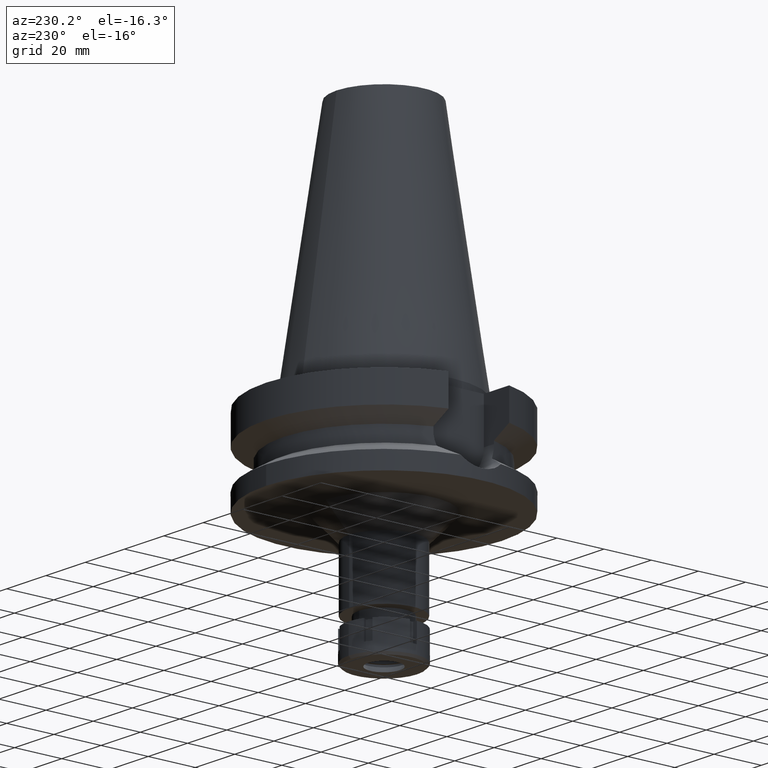
[diagram: clean part render]
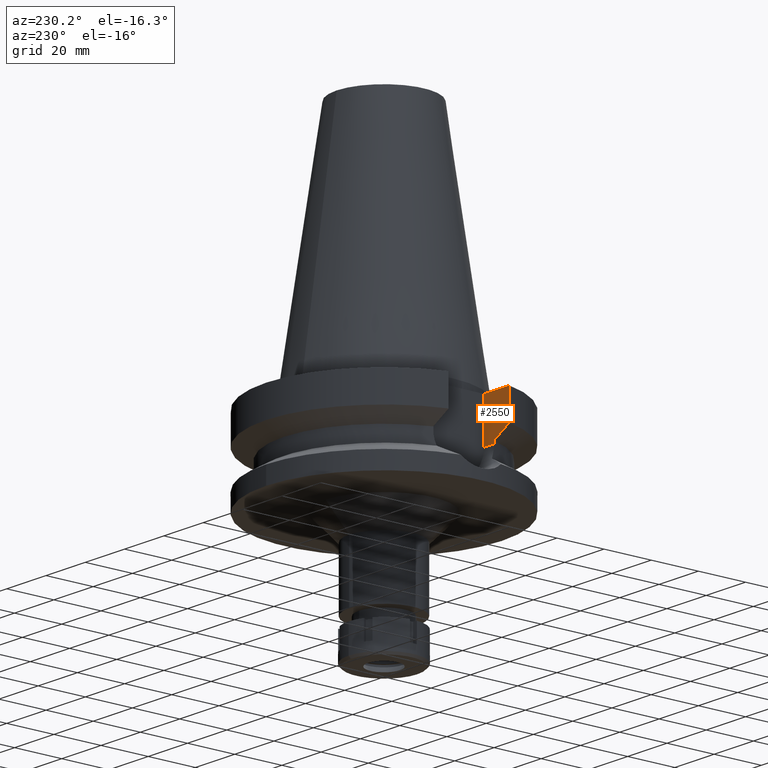
[diagram: same view with one face highlighted and labeled with its STEP entity id]
A machine part, auxiliary view. The second image highlights one B-rep face of the part: STEP entity #2550.
In plain terms, the highlighted planar face has unit normal (0, -1, 0).
Its self-contained STEP definition (entity closure, byte-faithful):
#43 = VECTOR ( 'NONE', #2361, 1000.000000000000000 ) ;
#522 = CARTESIAN_POINT ( 'NONE',  ( -40.51083299956000161, -12.84999648566000019, -19.99284622474999651 ) ) ;
#543 = PLANE ( 'NONE',  #3007 ) ;
#556 = CARTESIAN_POINT ( 'NONE',  ( -35.39999999999999858, -12.84999999999999964, -3.000000000000000000 ) ) ;
#630 = LINE ( 'NONE', #3270, #43 ) ;
#655 = CARTESIAN_POINT ( 'NONE',  ( -48.32057015392000210, -12.84999999999999964, -3.000000000000000000 ) ) ;
#739 = EDGE_CURVE ( 'NONE', #3208, #781, #973, .T. ) ;
#763 = ORIENTED_EDGE ( 'NONE', *, *, #739, .F. ) ;
#781 = VERTEX_POINT ( 'NONE', #2551 ) ;
#838 = ORIENTED_EDGE ( 'NONE', *, *, #1358, .F. ) ;
#973 = B_SPLINE_CURVE_WITH_KNOTS ( 'NONE', 3,
 ( #3040, #1061, #1636, #522 ),
 .UNSPECIFIED., .F., .F.,
 ( 4, 4 ),
 ( 0.0000000000000000000, 1.000000000000000000 ),
 .UNSPECIFIED. ) ;
#1020 = ORIENTED_EDGE ( 'NONE', *, *, #3201, .T. ) ;
#1061 = CARTESIAN_POINT ( 'NONE',  ( -45.51179789322389269, -12.85000766995661081, -17.22986769098791626 ) ) ;
#1070 = EDGE_CURVE ( 'NONE', #1703, #2386, #3210, .T. ) ;
#1164 = ORIENTED_EDGE ( 'NONE', *, *, #1070, .T. ) ;
#1171 = DIRECTION ( 'NONE',  ( -1.000000000000000000, 0.0000000000000000000, 0.0000000000000000000 ) ) ;
#1259 = EDGE_LOOP ( 'NONE', ( #763, #2811, #838, #1020, #1164, #2357 ) ) ;
#1267 = DIRECTION ( 'NONE',  ( -9.633491446336229157E-07, 3.037051236993074806E-06, 0.9999999999949240603 ) ) ;
#1358 = EDGE_CURVE ( 'NONE', #2245, #2416, #3105, .T. ) ;
#1488 = CARTESIAN_POINT ( 'NONE',  ( -40.51083188481999997, -12.84999999999999964, -21.14999999999999858 ) ) ;
#1500 = DIRECTION ( 'NONE',  ( -8.058817555715599136E-08, 3.030400043934850333E-07, 0.9999999999999509281 ) ) ;
#1506 = DIRECTION ( 'NONE',  ( -1.000000000000000000, 3.440913946376999995E-14, 0.0000000000000000000 ) ) ;
#1635 = EDGE_CURVE ( 'NONE', #3208, #2416, #2923, .T. ) ;
#1636 = CARTESIAN_POINT ( 'NONE',  ( -42.90862372501882049, -12.84999296417323222, -18.67324847598090187 ) ) ;
#1644 = DIRECTION ( 'NONE',  ( 0.0000000000000000000, -1.000000000000000000, 0.0000000000000000000 ) ) ;
#1674 = CARTESIAN_POINT ( 'NONE',  ( -35.39999999999999858, -12.84999999999999964, -21.14999999999999858 ) ) ;
#1703 = VERTEX_POINT ( 'NONE', #1923 ) ;
#1845 = LINE ( 'NONE', #2692, #2470 ) ;
#1916 = FACE_OUTER_BOUND ( 'NONE', #1259, .T. ) ;
#1923 = CARTESIAN_POINT ( 'NONE',  ( -35.39999999999999858, -12.84999999999999964, -21.14999999999999858 ) ) ;
#2127 = CARTESIAN_POINT ( 'NONE',  ( -35.39999999999999858, -12.84999999999999964, -21.14999999999999858 ) ) ;
#2245 = VERTEX_POINT ( 'NONE', #556 ) ;
#2337 = VECTOR ( 'NONE', #1500, 999.9999999999998863 ) ;
#2357 = ORIENTED_EDGE ( 'NONE', *, *, #2989, .T. ) ;
#2361 = DIRECTION ( 'NONE',  ( 0.0000000000000000000, 0.0000000000000000000, -1.000000000000000000 ) ) ;
#2386 = VERTEX_POINT ( 'NONE', #1488 ) ;
#2416 = VERTEX_POINT ( 'NONE', #655 ) ;
#2470 = VECTOR ( 'NONE', #1267, 1000.000000000000227 ) ;
#2548 = CARTESIAN_POINT ( 'NONE',  ( -35.39999999999999858, -12.84999999999999964, -3.000000000000000000 ) ) ;
#2550 = ADVANCED_FACE ( 'NONE', ( #1916 ), #543, .F. ) ;
#2551 = CARTESIAN_POINT ( 'NONE',  ( -40.51083299956000161, -12.84999648566000019, -19.99284622474999651 ) ) ;
#2692 = CARTESIAN_POINT ( 'NONE',  ( -40.51083188481999997, -12.84999999999999964, -21.14999999999999858 ) ) ;
#2750 = DIRECTION ( 'NONE',  ( 0.0000000000000000000, 0.0000000000000000000, -1.000000000000000000 ) ) ;
#2811 = ORIENTED_EDGE ( 'NONE', *, *, #1635, .T. ) ;
#2923 = LINE ( 'NONE', #3527, #2337 ) ;
#2983 = CARTESIAN_POINT ( 'NONE',  ( -48.32056913345999760, -12.85000383729000006, -15.66265786160999873 ) ) ;
#2989 = EDGE_CURVE ( 'NONE', #2386, #781, #1845, .T. ) ;
#3007 = AXIS2_PLACEMENT_3D ( 'NONE', #1674, #1644, #2750 ) ;
#3040 = CARTESIAN_POINT ( 'NONE',  ( -48.32056913345999760, -12.85000383729000006, -15.66265786160999873 ) ) ;
#3105 = LINE ( 'NONE', #2548, #3658 ) ;
#3201 = EDGE_CURVE ( 'NONE', #2245, #1703, #630, .T. ) ;
#3208 = VERTEX_POINT ( 'NONE', #2983 ) ;
#3210 = LINE ( 'NONE', #2127, #3547 ) ;
#3270 = CARTESIAN_POINT ( 'NONE',  ( -35.39999999999999858, -12.84999999999999964, -3.000000000000000000 ) ) ;
#3527 = CARTESIAN_POINT ( 'NONE',  ( -48.32056913345999760, -12.85000383729000006, -15.66265786160999873 ) ) ;
#3547 = VECTOR ( 'NONE', #1506, 1000.000000000000000 ) ;
#3658 = VECTOR ( 'NONE', #1171, 1000.000000000000000 ) ;